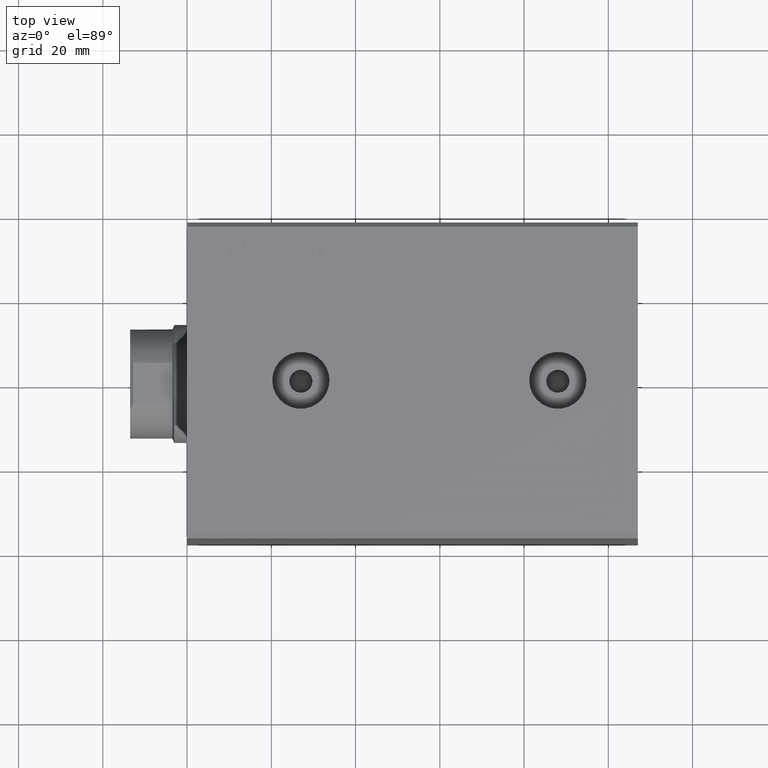
[diagram: clean part render]
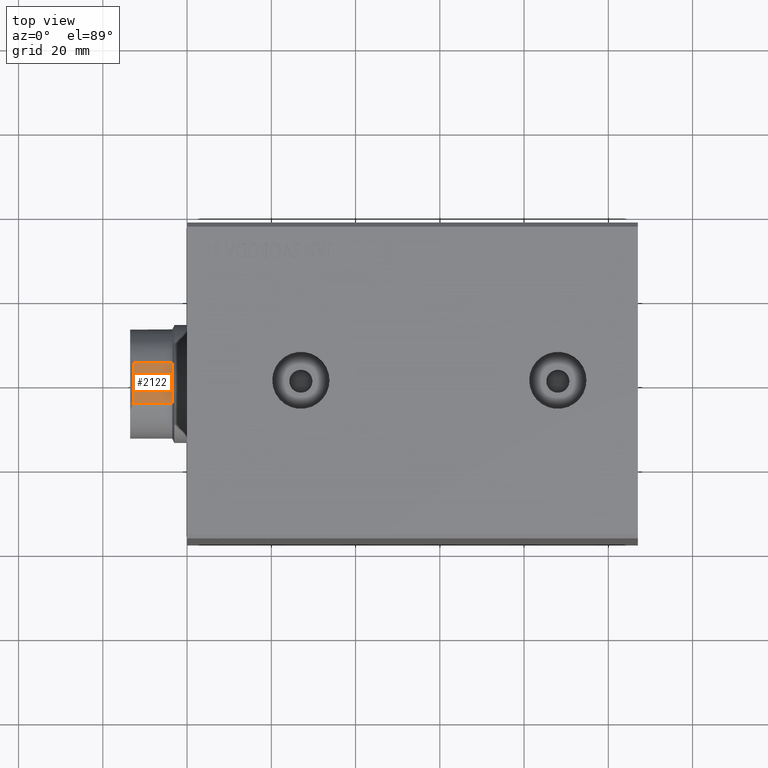
[diagram: same view with one face highlighted and labeled with its STEP entity id]
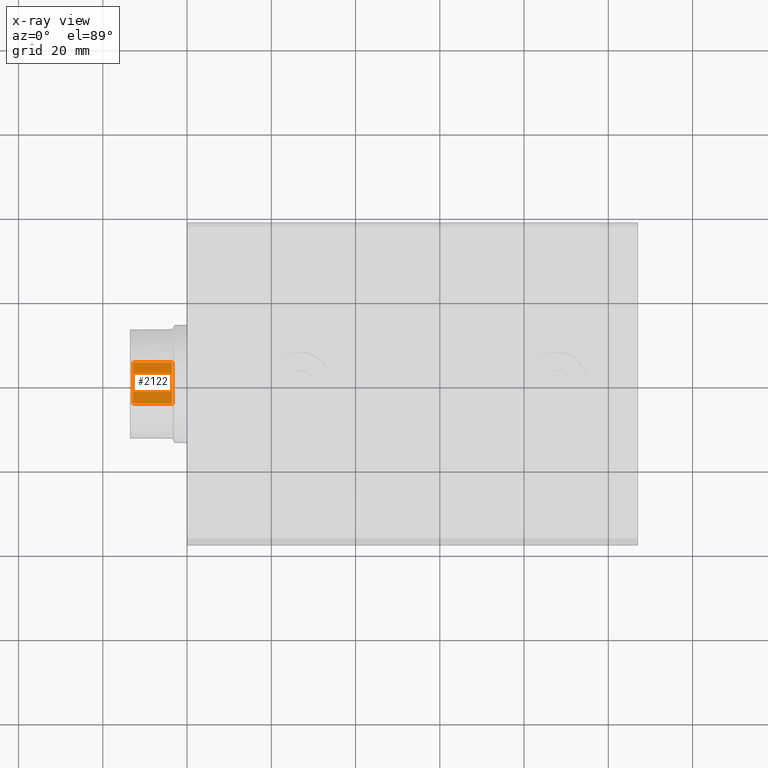
[diagram: x-ray of the same camera — body ghosted, the highlighted face saturated]
A machine part, top view. The second image highlights one B-rep face of the part: STEP entity #2122.
The next image is the same camera in x-ray: the body ghosted, the highlighted face saturated — about 0% of this face is hidden behind the body in this view.
In plain terms, the highlighted planar face has unit normal (0, -0, -1).
Its self-contained STEP definition (entity closure, byte-faithful):
#976 = DIRECTION ( 'NONE',  ( 0.000000000000000000, 1.563149398779766955E-16, -1.000000000000000000 ) ) ;
#2122 = ADVANCED_FACE ( 'NONE', ( #16443 ), #9483, .F. ) ;
#4914 = VECTOR ( 'NONE', #28361, 1000.000000000000000 ) ;
#9269 = DIRECTION ( 'NONE',  ( 0.000000000000000000, 0.000000000000000000, 1.000000000000000000 ) ) ;
#9483 = PLANE ( 'NONE',  #43786 ) ;
#10504 = CARTESIAN_POINT ( 'NONE',  ( 12.00000000000000000, -4.895058733049084232, 63.50000000000000000 ) ) ;
#12714 = VERTEX_POINT ( 'NONE', #28478 ) ;
#14186 = VECTOR ( 'NONE', #976, 1000.000000000000000 ) ;
#14474 = CARTESIAN_POINT ( 'NONE',  ( 12.00000000000000000, 4.895058733049062916, 73.50000000000001421 ) ) ;
#16443 = FACE_OUTER_BOUND ( 'NONE', #25495, .T. ) ;
#16598 = CARTESIAN_POINT ( 'NONE',  ( 12.00000000000000000, -4.895058733049086008, 73.50000000000001421 ) ) ;
#17990 = CARTESIAN_POINT ( 'NONE',  ( 12.00000000000000000, -58.78775382679627626, 63.50000000000000000 ) ) ;
#18675 = ORIENTED_EDGE ( 'NONE', *, *, #22389, .F. ) ;
#20974 = VERTEX_POINT ( 'NONE', #25445 ) ;
#22389 = EDGE_CURVE ( 'NONE', #39792, #20974, #40922, .T. ) ;
#25445 = CARTESIAN_POINT ( 'NONE',  ( 12.00000000000000000, -4.895058733049086008, 72.79000000000003467 ) ) ;
#25495 = EDGE_LOOP ( 'NONE', ( #38448, #41941, #18675, #27324 ) ) ;
#25929 = CARTESIAN_POINT ( 'NONE',  ( 12.00000000000000000, 4.895058733049062916, 72.79000000000003467 ) ) ;
#26583 = CARTESIAN_POINT ( 'NONE',  ( 12.00000000000000000, -58.78775382679627626, -63.49606293110032595 ) ) ;
#26938 = VECTOR ( 'NONE', #43406, 1000.000000000000000 ) ;
#27324 = ORIENTED_EDGE ( 'NONE', *, *, #31911, .T. ) ;
#28361 = DIRECTION ( 'NONE',  ( 0.000000000000000000, 1.000000000000000000, -0.000000000000000000 ) ) ;
#28478 = CARTESIAN_POINT ( 'NONE',  ( 12.00000000000000000, 4.895058733049064692, 63.50000000000000000 ) ) ;
#29171 = EDGE_CURVE ( 'NONE', #35809, #12714, #32490, .T. ) ;
#30199 = DIRECTION ( 'NONE',  ( -1.000000000000000000, 0.000000000000000000, 0.000000000000000000 ) ) ;
#31911 = EDGE_CURVE ( 'NONE', #39792, #12714, #32190, .T. ) ;
#32190 = LINE ( 'NONE', #17990, #4914 ) ;
#32490 = LINE ( 'NONE', #14474, #14186 ) ;
#35809 = VERTEX_POINT ( 'NONE', #25929 ) ;
#38392 = EDGE_CURVE ( 'NONE', #35809, #20974, #43593, .T. ) ;
#38448 = ORIENTED_EDGE ( 'NONE', *, *, #29171, .F. ) ;
#39792 = VERTEX_POINT ( 'NONE', #10504 ) ;
#40212 = CARTESIAN_POINT ( 'NONE',  ( 12.00000000000000000, -58.78775382679629757, 72.79000000000002046 ) ) ;
#40888 = VECTOR ( 'NONE', #43811, 1000.000000000000000 ) ;
#40922 = LINE ( 'NONE', #16598, #26938 ) ;
#41941 = ORIENTED_EDGE ( 'NONE', *, *, #38392, .T. ) ;
#43406 = DIRECTION ( 'NONE',  ( -0.000000000000000000, -1.563149398779766955E-16, 1.000000000000000000 ) ) ;
#43593 = LINE ( 'NONE', #40212, #40888 ) ;
#43786 = AXIS2_PLACEMENT_3D ( 'NONE', #26583, #30199, #9269 ) ;
#43811 = DIRECTION ( 'NONE',  ( 0.000000000000000000, -1.000000000000000000, -1.563149398779766955E-16 ) ) ;